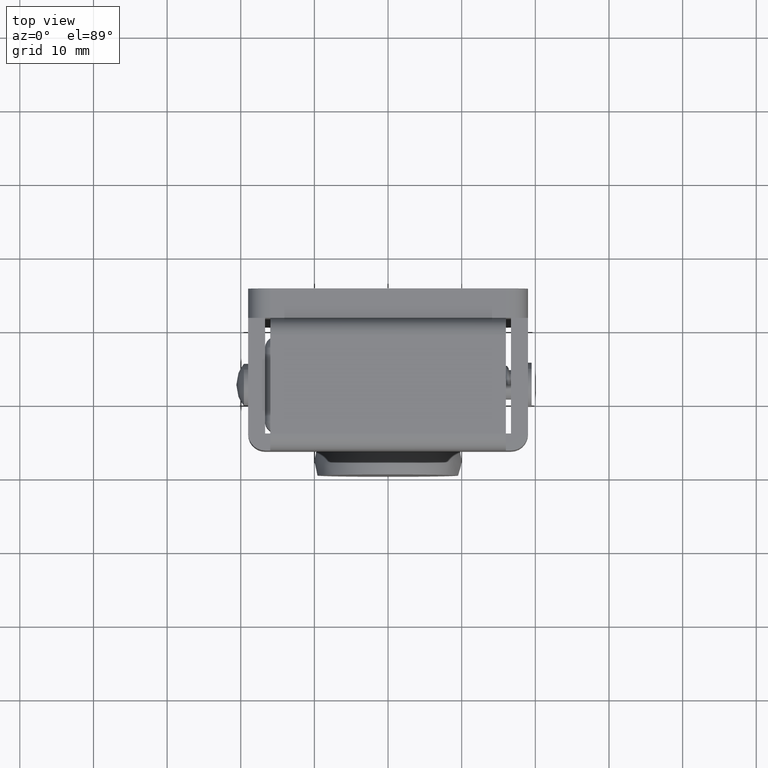
[diagram: clean part render]
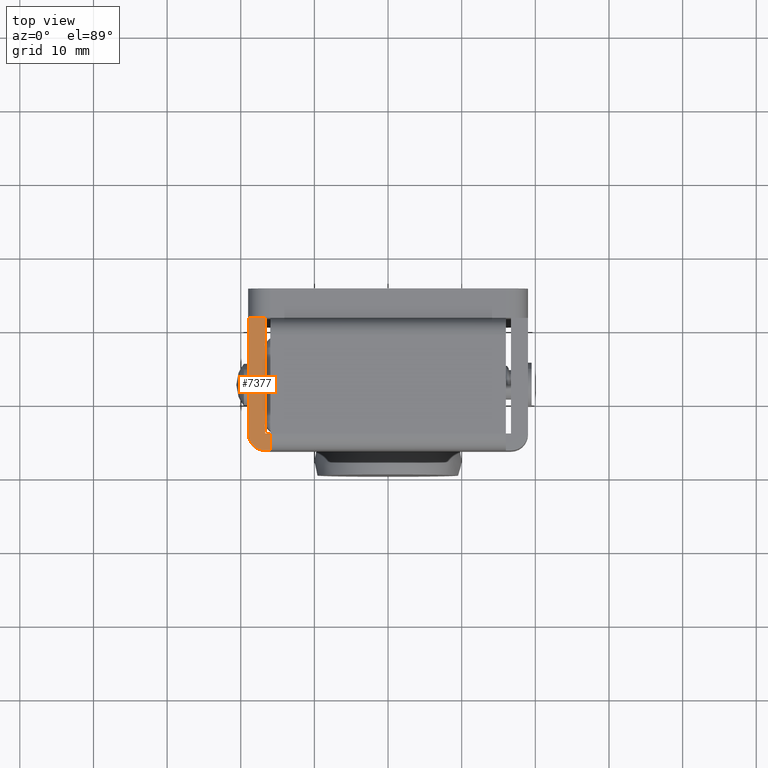
[diagram: same view with one face highlighted and labeled with its STEP entity id]
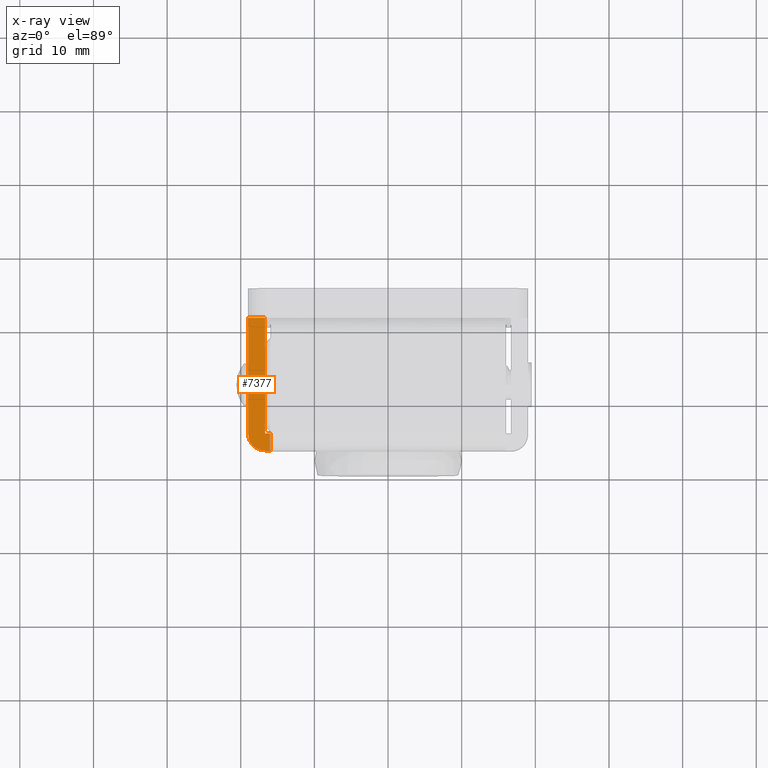
[diagram: x-ray of the same camera — body ghosted, the highlighted face saturated]
A machine part, top view. The second image highlights one B-rep face of the part: STEP entity #7377.
The next image is the same camera in x-ray: the body ghosted, the highlighted face saturated — about 0% of this face is hidden behind the body in this view.
In plain terms, the highlighted face is a freeform B-spline surface patch.
Its self-contained STEP definition (entity closure, byte-faithful):
#6826=CARTESIAN_POINT('',(16.0,-2.499999999999945,52.200000000000003));
#6827=VERTEX_POINT('',#6826);
#6961=CARTESIAN_POINT('',(16.699999999999999,-2.500000000000000,52.200000000000003));
#6962=VERTEX_POINT('',#6961);
#6968=CARTESIAN_POINT('',(19.0,-4.800000000000000,52.200000000000003));
#6969=VERTEX_POINT('',#6968);
#6970=CARTESIAN_POINT('',(16.699999999999999,-2.500000000000000,52.200000000000003));
#6971=CARTESIAN_POINT('',(16.906991633320899,-2.499929852933266,52.200000000000017));
#6972=CARTESIAN_POINT('',(17.264461411989249,-2.548624738888846,52.200000000000017));
#6973=CARTESIAN_POINT('',(17.846692614958489,-2.773037742137167,52.199999999999932));
#6974=CARTESIAN_POINT('',(18.368200663237172,-3.159771807650251,52.200000000000273));
#6975=CARTESIAN_POINT('',(18.740478532635681,-3.688638157014715,52.199999999999569));
#6976=CARTESIAN_POINT('',(18.951389496591251,-4.235531373468919,52.200000000000472));
#6977=CARTESIAN_POINT('',(19.000071762834160,-4.593007085685313,52.199999999999832));
#6978=CARTESIAN_POINT('',(19.0,-4.800000000000000,52.200000000000003));
#6979=B_SPLINE_CURVE_WITH_KNOTS('',3,(#6970,#6971,#6972,#6973,#6974,#6975,#6976,#6977,#6978),.UNSPECIFIED.,.F.,.U.,(4,1,1,1,1,1,4),(0.000000093082866,0.620969849427971,1.072591643053133,1.862902685643814,2.540330662001096,2.991952455626520,3.612922211971912),.UNSPECIFIED.);
#6980=EDGE_CURVE('',#6962,#6969,#6979,.T.);
#7076=CARTESIAN_POINT('',(19.0,-20.500000000000000,52.200000000000003));
#7077=VERTEX_POINT('',#7076);
#7083=CARTESIAN_POINT('',(16.699999999999999,-20.500000000000000,52.200000000000003));
#7084=VERTEX_POINT('',#7083);
#7085=CARTESIAN_POINT('',(16.699999999999999,-20.500000000000000,52.200000000000003));
#7086=CARTESIAN_POINT('',(19.0,-20.500000000000000,52.200000000000003));
#7087=QUASI_UNIFORM_CURVE('',1,(#7085,#7086),.UNSPECIFIED.,.F.,.U.);
#7088=EDGE_CURVE('',#7084,#7077,#7087,.T.);
#7103=CARTESIAN_POINT('',(16.699999999999999,-4.799999999999900,52.200000000000003));
#7104=VERTEX_POINT('',#7103);
#7118=CARTESIAN_POINT('',(16.699999999999999,-4.799999999999900,52.200000000000003));
#7119=CARTESIAN_POINT('',(16.699999999999999,-20.500000000000000,52.200000000000003));
#7120=QUASI_UNIFORM_CURVE('',1,(#7118,#7119),.UNSPECIFIED.,.F.,.U.);
#7121=EDGE_CURVE('',#7104,#7084,#7120,.T.);
#7225=CARTESIAN_POINT('',(16.0,-4.799999999999900,52.200000000000003));
#7226=VERTEX_POINT('',#7225);
#7263=CARTESIAN_POINT('',(16.699999999999999,-2.500000000000000,52.200000000000003));
#7264=CARTESIAN_POINT('',(16.0,-2.499999999999945,52.200000000000003));
#7265=QUASI_UNIFORM_CURVE('',1,(#7263,#7264),.UNSPECIFIED.,.F.,.U.);
#7266=EDGE_CURVE('',#6962,#6827,#7265,.T.);
#7344=CARTESIAN_POINT('',(16.0,-4.799999999999900,52.200000000000003));
#7345=CARTESIAN_POINT('',(16.0,-2.499999999999945,52.200000000000003));
#7346=QUASI_UNIFORM_CURVE('',1,(#7344,#7345),.UNSPECIFIED.,.F.,.U.);
#7347=EDGE_CURVE('',#7226,#6827,#7346,.T.);
#7355=CARTESIAN_POINT('',(15.850150005814580,-1.600900034887436,52.200000000000003));
#7356=CARTESIAN_POINT('',(15.850150005814580,-21.399100447910140,52.200000000000003));
#7357=CARTESIAN_POINT('',(19.149850074651692,-1.600900034887436,52.200000000000003));
#7358=CARTESIAN_POINT('',(19.149850074651692,-21.399100447910140,52.200000000000003));
#7359=B_SPLINE_SURFACE_WITH_KNOTS('',1,1,((#7355,#7357),(#7356,#7358)),.UNSPECIFIED.,.F.,.F.,.U.,(2,2),(2,2),(0.0,19.798200413022698),(0.0,3.299700068837108),.UNSPECIFIED.);
#7360=ORIENTED_EDGE('',*,*,#7266,.T.);
#7361=ORIENTED_EDGE('',*,*,#7347,.F.);
#7362=CARTESIAN_POINT('',(16.699999999999999,-4.799999999999900,52.200000000000003));
#7363=CARTESIAN_POINT('',(16.0,-4.799999999999900,52.200000000000003));
#7364=QUASI_UNIFORM_CURVE('',1,(#7362,#7363),.UNSPECIFIED.,.F.,.U.);
#7365=EDGE_CURVE('',#7104,#7226,#7364,.T.);
#7366=ORIENTED_EDGE('',*,*,#7365,.F.);
#7367=ORIENTED_EDGE('',*,*,#7121,.T.);
#7368=ORIENTED_EDGE('',*,*,#7088,.T.);
#7369=CARTESIAN_POINT('',(19.0,-20.500000000000000,52.200000000000003));
#7370=CARTESIAN_POINT('',(19.0,-4.800000000000000,52.200000000000003));
#7371=QUASI_UNIFORM_CURVE('',1,(#7369,#7370),.UNSPECIFIED.,.F.,.U.);
#7372=EDGE_CURVE('',#7077,#6969,#7371,.T.);
#7373=ORIENTED_EDGE('',*,*,#7372,.T.);
#7374=ORIENTED_EDGE('',*,*,#6980,.F.);
#7375=EDGE_LOOP('',(#7360,#7361,#7366,#7367,#7368,#7373,#7374));
#7376=FACE_OUTER_BOUND('',#7375,.T.);
#7377=ADVANCED_FACE('',(#7376),#7359,.T.);